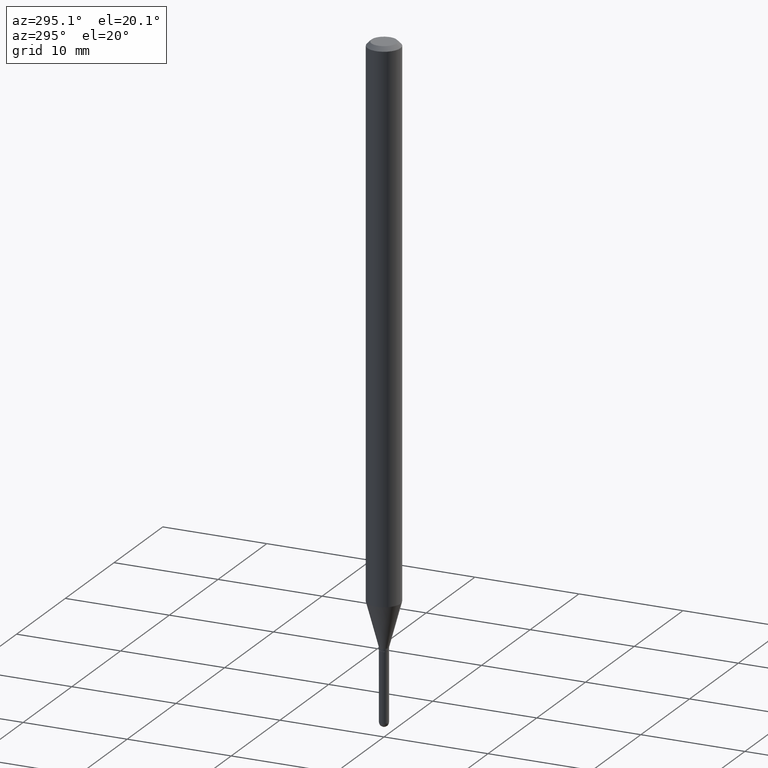
[diagram: clean part render]
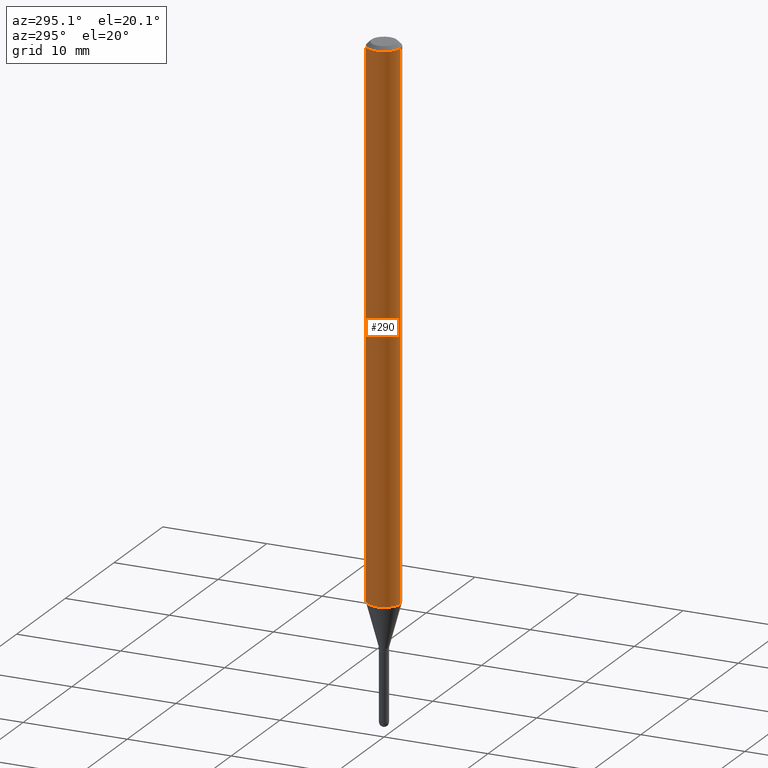
[diagram: same view with one face highlighted and labeled with its STEP entity id]
A machine part, auxiliary view. The second image highlights one B-rep face of the part: STEP entity #290.
In plain terms, the highlighted cylindrical surface (edge-blend (fillet) strip) has radius 1.5875 mm, axis along (-0, 0, 1).
Its self-contained STEP definition (entity closure, byte-faithful):
#14 = LINE ( 'NONE', #418, #345 ) ;
#20 = CIRCLE ( 'NONE', #238, 0.06250000000000000000 ) ;
#24 = DIRECTION ( 'NONE',  ( -6.982962677686265922E-15, -1.000000000000000000, 3.491508770600309378E-15 ) ) ;
#39 = DIRECTION ( 'NONE',  ( -2.445449650691490945E-29, 3.491508770600309378E-15, 1.000000000000000000 ) ) ;
#48 = DIRECTION ( 'NONE',  ( -6.982962677686265922E-15, -1.000000000000000000, 3.483106191921935554E-15 ) ) ;
#70 = VERTEX_POINT ( 'NONE', #264 ) ;
#80 = VERTEX_POINT ( 'NONE', #419 ) ;
#87 = AXIS2_PLACEMENT_3D ( 'NONE', #106, #389, #24 ) ;
#92 = LINE ( 'NONE', #215, #159 ) ;
#106 = CARTESIAN_POINT ( 'NONE',  ( 0.000000000000000000, 0.000000000000000000, 0.000000000000000000 ) ) ;
#112 = VERTEX_POINT ( 'NONE', #223 ) ;
#115 = AXIS2_PLACEMENT_3D ( 'NONE', #390, #464, #283 ) ;
#125 = ORIENTED_EDGE ( 'NONE', *, *, #409, .F. ) ;
#153 = CYLINDRICAL_SURFACE ( 'NONE', #87, 0.06250000000000000000 ) ;
#159 = VECTOR ( 'NONE', #446, 39.37007874015748143 ) ;
#175 = DIRECTION ( 'NONE',  ( -2.445449650691490665E-29, 3.491508770600308983E-15, 1.000000000000000000 ) ) ;
#215 = CARTESIAN_POINT ( 'NONE',  ( 4.440892098500625669E-16, 0.06250000000000000000, -2.182192981625193361E-16 ) ) ;
#223 = CARTESIAN_POINT ( 'NONE',  ( -4.364351673553912750E-16, -0.06250000000000005551, -0.01499999999999979128 ) ) ;
#227 = FACE_OUTER_BOUND ( 'NONE', #263, .T. ) ;
#228 = ORIENTED_EDGE ( 'NONE', *, *, #477, .T. ) ;
#231 = ORIENTED_EDGE ( 'NONE', *, *, #455, .F. ) ;
#238 = AXIS2_PLACEMENT_3D ( 'NONE', #329, #39, #48 ) ;
#260 = EDGE_CURVE ( 'NONE', #70, #315, #436, .T. ) ;
#263 = EDGE_LOOP ( 'NONE', ( #231, #463, #228, #125 ) ) ;
#264 = CARTESIAN_POINT ( 'NONE',  ( 4.440892098501123144E-16, 0.06249999999999285294, -2.042057713659400253 ) ) ;
#283 = DIRECTION ( 'NONE',  ( -6.982962677686265922E-15, -1.000000000000000000, 4.370956789862821150E-15 ) ) ;
#290 = ADVANCED_FACE ( 'NONE', ( #227 ), #153, .T. ) ;
#310 = CARTESIAN_POINT ( 'NONE',  ( -4.364351673553418233E-16, -0.06250000000000713318, -2.042057713659399809 ) ) ;
#315 = VERTEX_POINT ( 'NONE', #310 ) ;
#329 = CARTESIAN_POINT ( 'NONE',  ( 3.668174476037238870E-31, -5.237263155900467617E-17, -0.01500000000000000812 ) ) ;
#345 = VECTOR ( 'NONE', #175, 39.37007874015748143 ) ;
#389 = DIRECTION ( 'NONE',  ( -2.445449650691490945E-29, 3.491508770600309378E-15, 1.000000000000000000 ) ) ;
#390 = CARTESIAN_POINT ( 'NONE',  ( 4.993749322560243960E-29, -7.129862417313810105E-15, -2.042057713659399809 ) ) ;
#409 = EDGE_CURVE ( 'NONE', #80, #112, #20, .T. ) ;
#418 = CARTESIAN_POINT ( 'NONE',  ( -4.364351673553916201E-16, -0.06250000000000000000, 2.182192981625193361E-16 ) ) ;
#419 = CARTESIAN_POINT ( 'NONE',  ( 4.440892098501129061E-16, 0.06249999999999995837, -0.01500000000000022669 ) ) ;
#436 = CIRCLE ( 'NONE', #115, 0.06250000000000000000 ) ;
#446 = DIRECTION ( 'NONE',  ( -2.445449650691490665E-29, 3.491508770600308983E-15, 1.000000000000000000 ) ) ;
#455 = EDGE_CURVE ( 'NONE', #70, #80, #92, .T. ) ;
#463 = ORIENTED_EDGE ( 'NONE', *, *, #260, .T. ) ;
#464 = DIRECTION ( 'NONE',  ( -2.445449650691490945E-29, 3.491508770600309378E-15, 1.000000000000000000 ) ) ;
#477 = EDGE_CURVE ( 'NONE', #315, #112, #14, .T. ) ;